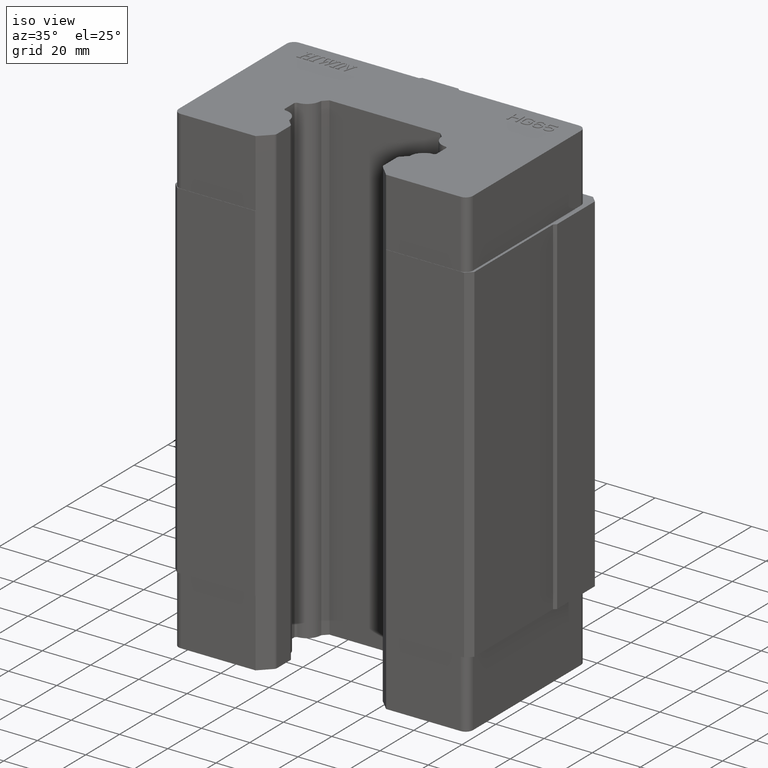
[diagram: clean part render]
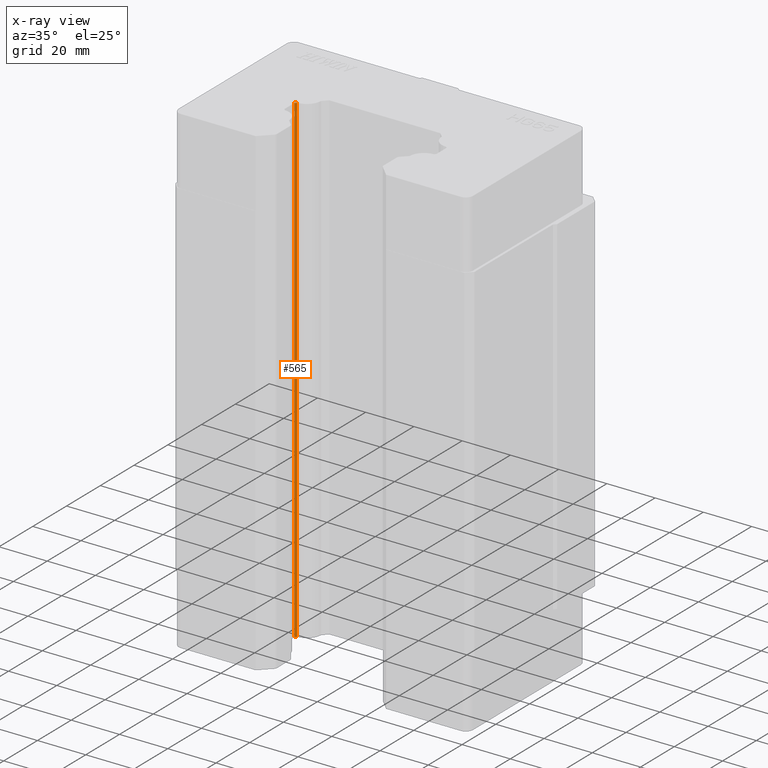
[diagram: x-ray — body ghosted, one internal face saturated and labeled with its STEP entity id]
A machine part, iso view, then the same camera in x-ray: the body is ghosted and one INTERNAL B-rep face — a face not visible from any outside direction — is saturated and labeled: STEP entity #565.
In plain terms, the highlighted planar face has unit normal (0.7071, -0.7071, 0).
Its self-contained STEP definition (entity closure, byte-faithful):
#564 = EDGE_LOOP ( 'NONE', ( #606, #568, #720, #1027 ) ) ;
#565 = ADVANCED_FACE ( 'NONE', ( #4849 ), #4848, .T. ) ;
#568 = ORIENTED_EDGE ( 'NONE', *, *, #602, .F. ) ;
#569 = VERTEX_POINT ( 'NONE', #4837 ) ;
#586 = EDGE_CURVE ( 'NONE', #569, #1001, #4874, .T. ) ;
#598 = VERTEX_POINT ( 'NONE', #4920 ) ;
#602 = EDGE_CURVE ( 'NONE', #998, #1001, #4910, .T. ) ;
#606 = ORIENTED_EDGE ( 'NONE', *, *, #586, .T. ) ;
#719 = EDGE_CURVE ( 'NONE', #998, #598, #5168, .T. ) ;
#720 = ORIENTED_EDGE ( 'NONE', *, *, #719, .T. ) ;
#998 = VERTEX_POINT ( 'NONE', #5530 ) ;
#1001 = VERTEX_POINT ( 'NONE', #5528 ) ;
#1025 = EDGE_CURVE ( 'NONE', #569, #598, #5610, .T. ) ;
#1027 = ORIENTED_EDGE ( 'NONE', *, *, #1025, .F. ) ;
#4837 = CARTESIAN_POINT ( 'NONE',  ( -31.50000000000000000, -8.499969418590000100, -100.0999999999999900 ) ) ;
#4844 = DIRECTION ( 'NONE',  ( 0.7071067811866975600, 0.7071067811863974700, 0.0000000000000000000 ) ) ;
#4845 = DIRECTION ( 'NONE',  ( 0.7071067811863974700, -0.7071067811866975600, 0.0000000000000000000 ) ) ;
#4846 = CARTESIAN_POINT ( 'NONE',  ( -31.50000000000000000, -8.499969418590000100, -72.09999999999999400 ) ) ;
#4847 = AXIS2_PLACEMENT_3D ( 'NONE', #4846, #4845, #4844 ) ;
#4848 = PLANE ( 'NONE',  #4847 ) ;
#4849 = FACE_OUTER_BOUND ( 'NONE', #564, .T. ) ;
#4871 = DIRECTION ( 'NONE',  ( 0.7071067811866975600, 0.7071067811863974700, 0.0000000000000000000 ) ) ;
#4872 = VECTOR ( 'NONE', #4871, 1000.000000000000100 ) ;
#4873 = CARTESIAN_POINT ( 'NONE',  ( -31.50000000000000000, -8.499969418590000100, -100.0999999999999900 ) ) ;
#4874 = LINE ( 'NONE', #4873, #4872 ) ;
#4907 = DIRECTION ( 'NONE',  ( 0.0000000000000000000, 0.0000000000000000000, -1.000000000000000000 ) ) ;
#4908 = VECTOR ( 'NONE', #4907, 1000.000000000000000 ) ;
#4909 = CARTESIAN_POINT ( 'NONE',  ( -30.87491723597000300, -7.874886654559775300, -72.09999999999999400 ) ) ;
#4910 = LINE ( 'NONE', #4909, #4908 ) ;
#4920 = CARTESIAN_POINT ( 'NONE',  ( -31.50000000000000000, -8.499969418590000100, 100.0999999999999900 ) ) ;
#5165 = DIRECTION ( 'NONE',  ( -0.7071067811866975600, -0.7071067811863974700, 0.0000000000000000000 ) ) ;
#5166 = VECTOR ( 'NONE', #5165, 1000.000000000000100 ) ;
#5167 = CARTESIAN_POINT ( 'NONE',  ( -31.50000000000000000, -8.499969418590000100, 100.0999999999999900 ) ) ;
#5168 = LINE ( 'NONE', #5167, #5166 ) ;
#5528 = CARTESIAN_POINT ( 'NONE',  ( -30.87491723596975000, -7.874886654559770000, -100.0999999999999900 ) ) ;
#5530 = CARTESIAN_POINT ( 'NONE',  ( -30.87491723596975000, -7.874886654559770000, 100.0999999999999900 ) ) ;
#5607 = DIRECTION ( 'NONE',  ( 0.0000000000000000000, 0.0000000000000000000, 1.000000000000000000 ) ) ;
#5608 = VECTOR ( 'NONE', #5607, 1000.000000000000000 ) ;
#5609 = CARTESIAN_POINT ( 'NONE',  ( -31.50000000000000000, -8.499969418590000100, -72.09999999999999400 ) ) ;
#5610 = LINE ( 'NONE', #5609, #5608 ) ;